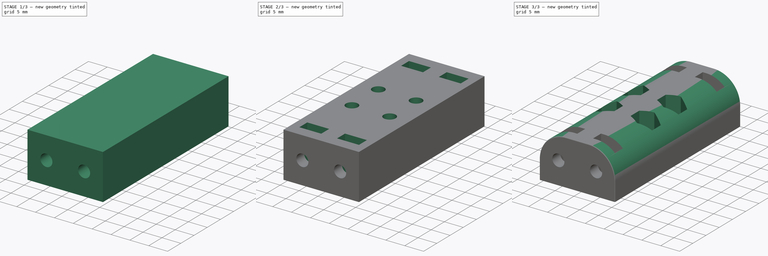
[diagram: build sequence overview — one tinted view per stage of 3, left to right]
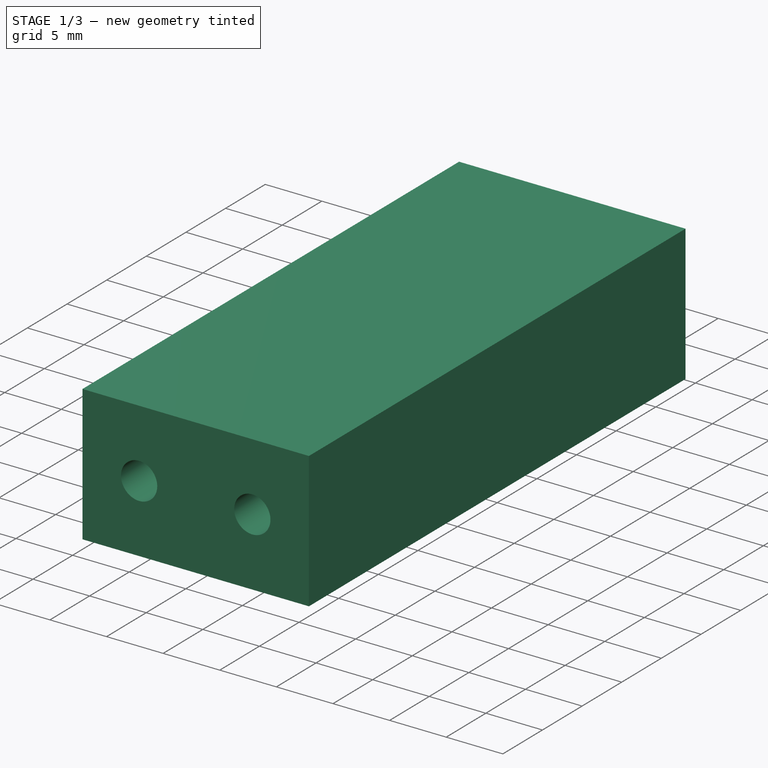
[diagram: stage 1 of 3 — iso view after this stage's code; geometry added in this stage tinted green]
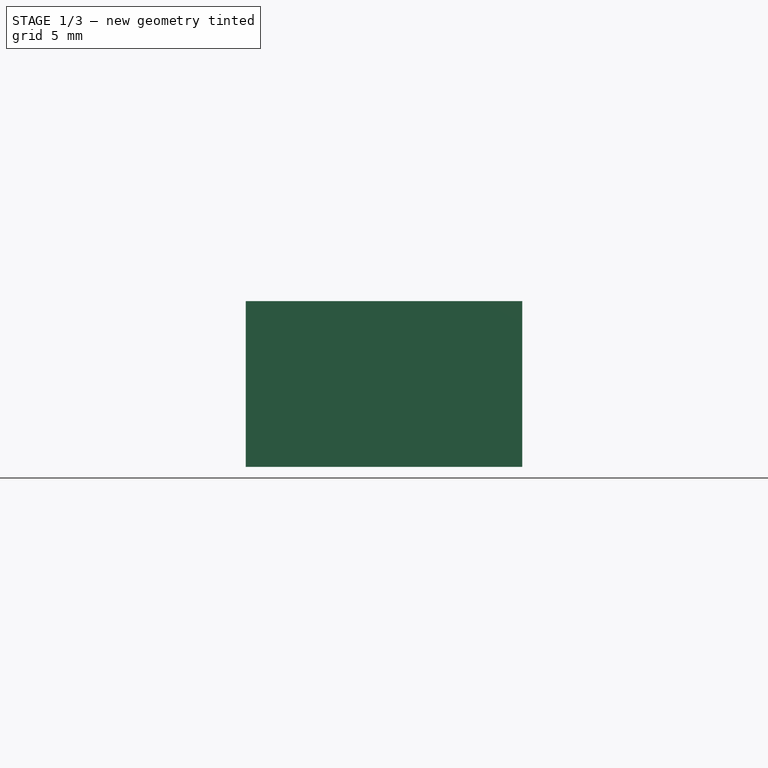
[diagram: stage 1 of 3 — front view after this stage's code; geometry added in this stage tinted green]
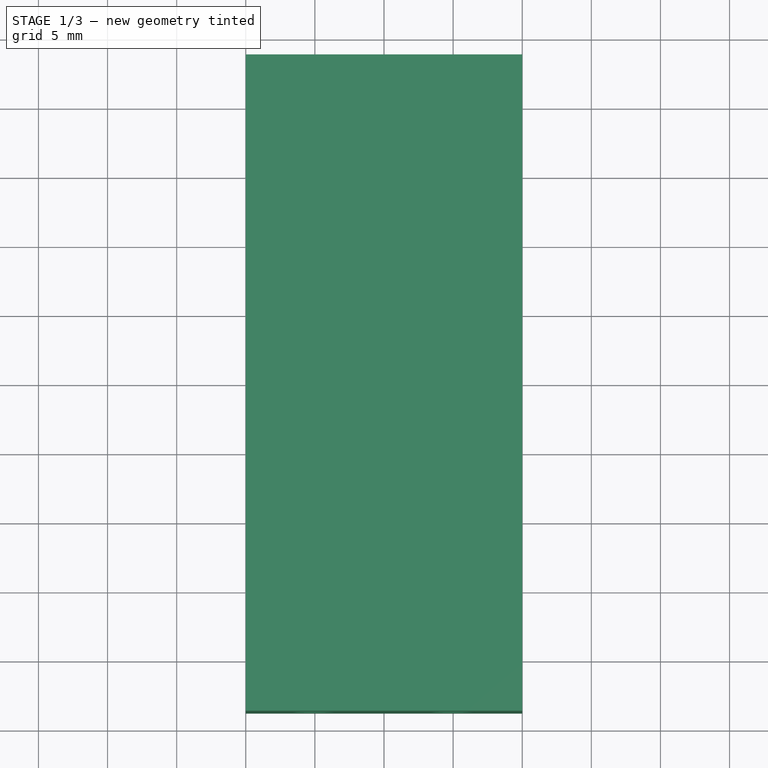
[diagram: stage 1 of 3 — top view after this stage's code; geometry added in this stage tinted green]
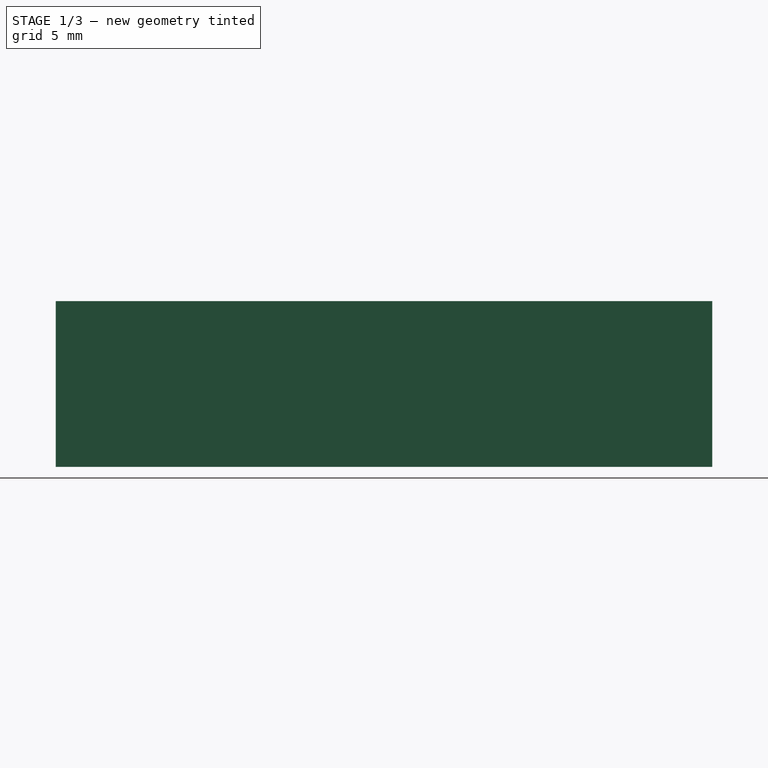
[diagram: stage 1 of 3 — right view after this stage's code; geometry added in this stage tinted green]
FCSTD DOCUMENT  (FreeCAD 0.18R4 (GitTag))
Label: Bottom_Shoulder
License: CreativeCommons Attribution-NonCommercial
LicenseURL: http://creativecommons.org/licenses/by-nc/4.0/
objects: Sketcher::SketchObject×7, PartDesign::Pocket×6, PartDesign::Pad×1, PartDesign::Fillet×1, PartDesign::Body×1
note: 23 computed .brp shape members not serialized (recipe doc carries the construction recipe); baked Part::Feature solids carry a one-line shape summary decoded from their .brp

FEATURE [Sketcher::SketchObject] Sketch
  MapMode = 5
  Support = -> [XY_Plane]
  sketch-geometry (4):
    g0: LineSegment StartX=-10 StartY=23.75 StartZ=0 EndX=10 EndY=23.75 EndZ=0
    g1: LineSegment StartX=10 StartY=23.75 StartZ=0 EndX=10 EndY=-23.75 EndZ=0
    g2: LineSegment StartX=10 StartY=-23.75 StartZ=0 EndX=-10 EndY=-23.75 EndZ=0
    g3: LineSegment StartX=-10 StartY=-23.75 StartZ=0 EndX=-10 EndY=23.75 EndZ=0
  constraints (10):
    c: Coincident(g0,g1)
    c: Coincident(g1,g2)
    c: Coincident(g2,g3)
    c: Coincident(g3,g0)
    c: Horizontal(g2)
    c: Vertical(g1)
    c: Symmetric(g0,g0,g-2)
    c: Symmetric(g0,g2,g-1)
    c: DistanceX(g0,g0) = 20
    c: DistanceY(g3,g3) = 47.5
FEATURE [PartDesign::Pad] Pad  label="Baseplate"
  Length = 12
  Length2 = 100
  Profile = -> Sketch
  Type = 0
FEATURE [Sketcher::SketchObject] Sketch001
  MapMode = 5
  Placement = pos=(0,-23.75,0) rot=(1,0,0;1.5708rad)
  Support = -> [Pad]
  sketch-geometry (2):
    g0: Circle CenterX=-5 CenterY=6 CenterZ=0 NormalX=0 NormalY=0 NormalZ=1 AngleXU=0 Radius=1.6
    g1: Circle CenterX=5 CenterY=6 CenterZ=0 NormalX=0 NormalY=0 NormalZ=1 AngleXU=0 Radius=1.6
  constraints (5):
    c: Symmetric(g0,g1,g-2)
    c: Equal(g0,g1)
    c: Radius(g1) = 1.6
    c: DistanceY(g-1,g0) = 6
    c: DistanceX(g0,g1) = 10
FEATURE [PartDesign::Pocket] Pocket  label="Screwholes Front"
  BaseFeature = -> Pad
  Length = 8
  Length2 = 100
  Profile = -> Sketch001
  Type = 0
FEATURE [Sketcher::SketchObject] Sketch002
  MapMode = 5
  Placement = pos=(0,23.75,0) rot=(0,0.707107,0.707107;3.14159rad)
  Support = -> [Pocket]
  sketch-geometry (2):
    g0: Circle CenterX=-5 CenterY=6 CenterZ=0 NormalX=0 NormalY=0 NormalZ=1 AngleXU=0 Radius=1.6
    g1: Circle CenterX=5 CenterY=6 CenterZ=0 NormalX=0 NormalY=0 NormalZ=1 AngleXU=0 Radius=1.6
  constraints (5):
    c: Symmetric(g0,g1,g-2)
    c: Equal(g0,g1)
    c: Radius(g1) = 1.6
    c: DistanceY(g-1,g0) = 6
    c: DistanceX(g0,g1) = 10
FEATURE [PartDesign::Pocket] Pocket001  label="Screwholes Rear"
  BaseFeature = -> Pocket
  Length = 8
  Length2 = 100
  Profile = -> Sketch002
  Type = 0
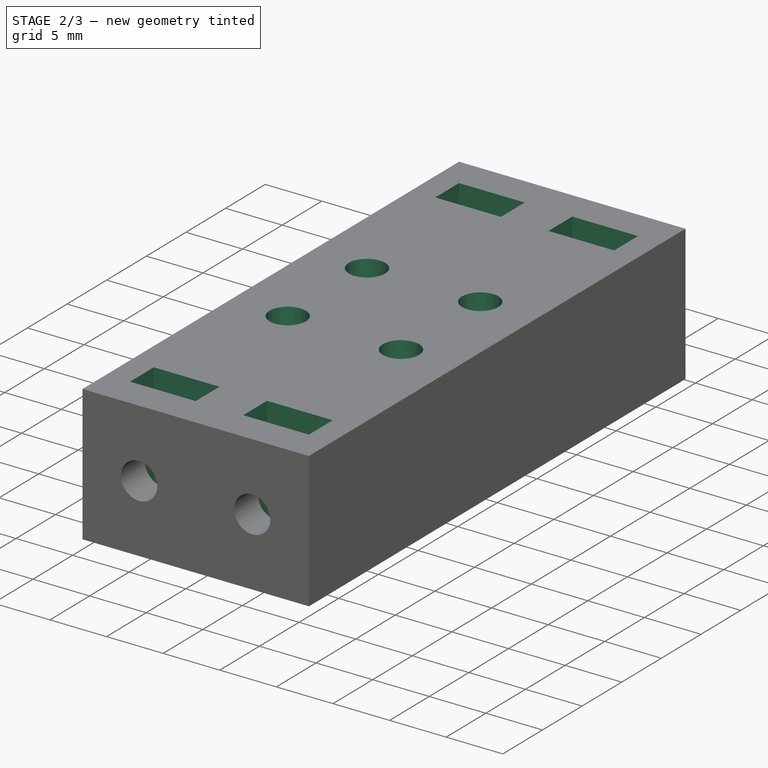
[diagram: stage 2 of 3 — iso view after this stage's code; geometry added in this stage tinted green]
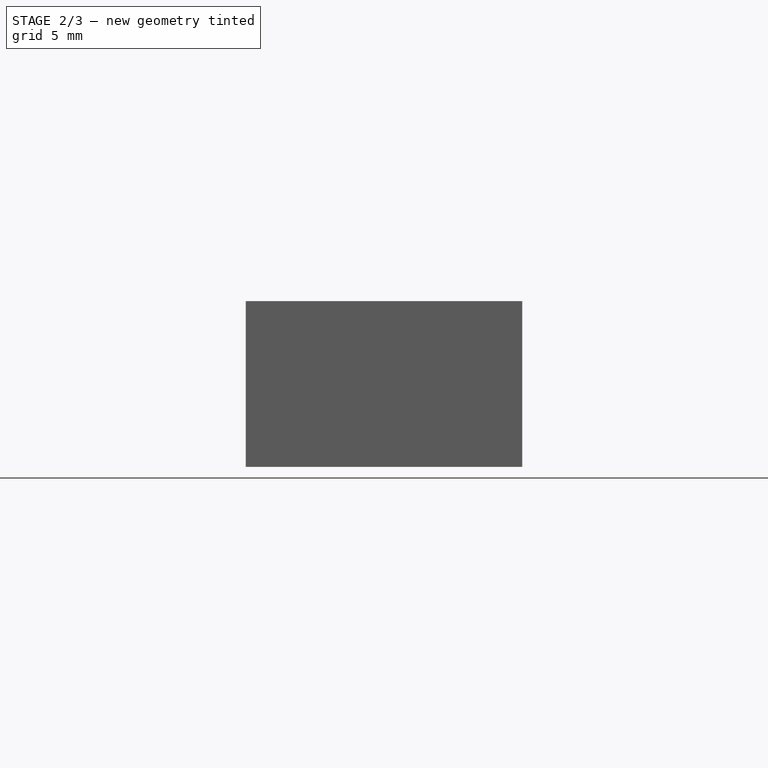
[diagram: stage 2 of 3 — front view after this stage's code; geometry added in this stage tinted green]
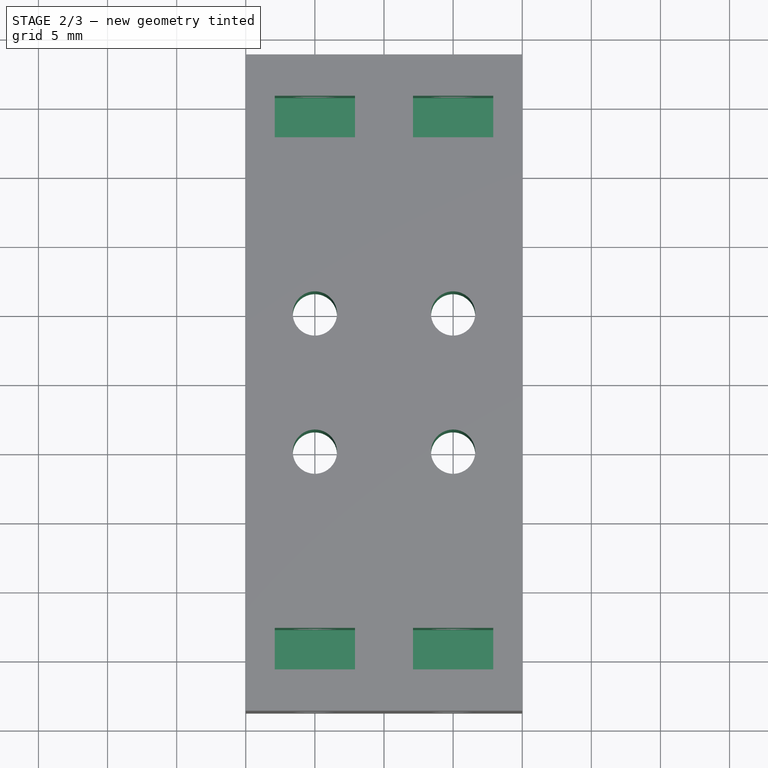
[diagram: stage 2 of 3 — top view after this stage's code; geometry added in this stage tinted green]
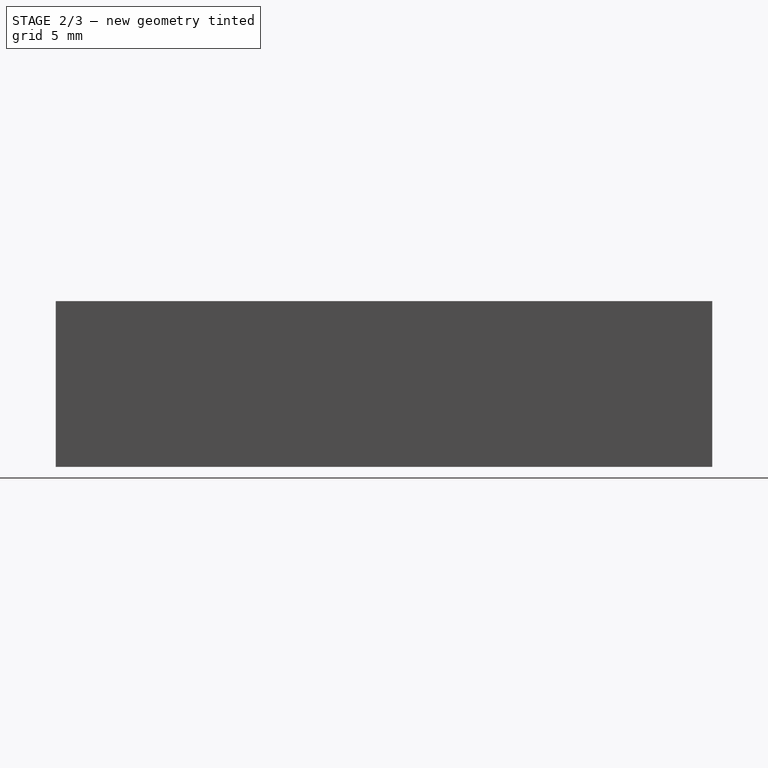
[diagram: stage 2 of 3 — right view after this stage's code; geometry added in this stage tinted green]
FEATURE [Sketcher::SketchObject] Sketch003
  MapMode = 5
  Placement = pos=(0,0,12) rot=(0,0,1;0rad)
  Support = -> [Pocket001]
  sketch-geometry (16):
    g0: LineSegment StartX=-7.9 StartY=20.75 StartZ=0 EndX=-2.1 EndY=20.75 EndZ=0
    g1: LineSegment StartX=-2.1 StartY=20.75 StartZ=0 EndX=-2.1 EndY=17.75 EndZ=0
    g2: LineSegment StartX=-2.1 StartY=17.75 StartZ=0 EndX=-7.9 EndY=17.75 EndZ=0
    g3: LineSegment StartX=-7.9 StartY=17.75 StartZ=0 EndX=-7.9 EndY=20.75 EndZ=0
    g4: LineSegment StartX=2.1 StartY=20.75 StartZ=0 EndX=7.9 EndY=20.75 EndZ=0
    g5: LineSegment StartX=7.9 StartY=20.75 StartZ=0 EndX=7.9 EndY=17.75 EndZ=0
    g6: LineSegment StartX=7.9 StartY=17.75 StartZ=0 EndX=2.1 EndY=17.75 EndZ=0
    g7: LineSegment StartX=2.1 StartY=17.75 StartZ=0 EndX=2.1 EndY=20.75 EndZ=0
    g8: LineSegment StartX=-7.9 StartY=-17.75 StartZ=0 EndX=-2.1 EndY=-17.75 EndZ=0
    g9: LineSegment StartX=-2.1 StartY=-17.75 StartZ=0 EndX=-2.1 EndY=-20.75 EndZ=0
    g10: LineSegment StartX=-2.1 StartY=-20.75 StartZ=0 EndX=-7.9 EndY=-20.75 EndZ=0
    g11: LineSegment StartX=-7.9 StartY=-20.75 StartZ=0 EndX=-7.9 EndY=-17.75 EndZ=0
    g12: LineSegment StartX=2.1 StartY=-17.75 StartZ=0 EndX=7.9 EndY=-17.75 EndZ=0
    g13: LineSegment StartX=7.9 StartY=-17.75 StartZ=0 EndX=7.9 EndY=-20.75 EndZ=0
    g14: LineSegment StartX=7.9 StartY=-20.75 StartZ=0 EndX=2.1 EndY=-20.75 EndZ=0
    g15: LineSegment StartX=2.1 StartY=-20.75 StartZ=0 EndX=2.1 EndY=-17.75 EndZ=0
  constraints (45):
    c: Coincident(g0,g1)
    c: Coincident(g1,g2)
    c: Coincident(g2,g3)
    c: Coincident(g3,g0)
    c: Horizontal(g0)
    c: Horizontal(g2)
    c: Vertical(g1)
    c: Vertical(g3)
    c: Coincident(g4,g5)
    c: Coincident(g5,g6)
    c: Coincident(g6,g7)
    c: Coincident(g7,g4)
    c: Horizontal(g4)
    c: Horizontal(g6)
    c: Vertical(g5)
    c: Vertical(g7)
    c: Coincident(g8,g9)
    c: Coincident(g9,g10)
    c: Coincident(g10,g11)
    c: Coincident(g11,g8)
    c: Horizontal(g8)
    c: Horizontal(g10)
    c: Vertical(g9)
    c: Vertical(g11)
    c: Coincident(g12,g13)
    c: Coincident(g13,g14)
    c: Coincident(g14,g15)
    c: Coincident(g15,g12)
    c: Horizontal(g12)
    c: Horizontal(g14)
    c: Vertical(g13)
    c: Vertical(g15)
    c: Equal(g11,g13)
    c: Equal(g13,g5)
    c: Equal(g5,g3)
    c: Equal(g0,g4)
    c: Equal(g4,g10)
    c: Equal(g10,g14)
    c: DistanceX(g0,g0) = 5.8
    c: Symmetric(g0,g4,g-2)
    c: Symmetric(g9,g14,g-2)
    c: Symmetric(g12,g5,g-1)
    c: DistanceY(g10,g-1) = 20.75
    c: DistanceY(g11,g11) = 3
    c: DistanceX(g0,g4) = 4.2
FEATURE [PartDesign::Pocket] Pocket002  label="Nutholes Front and Rear"
  BaseFeature = -> Pocket001
  Length = 9.5
  Length2 = 100
  Profile = -> Sketch003
  Type = 0
FEATURE [Sketcher::SketchObject] Sketch004
  MapMode = 5
  Placement = pos=(0,0,12) rot=(0,0,1;0rad)
  Support = -> [Pocket002]
  sketch-geometry (4):
    g0: Circle CenterX=-5 CenterY=5 CenterZ=0 NormalX=0 NormalY=0 NormalZ=1 AngleXU=0 Radius=1.6
    g1: Circle CenterX=5 CenterY=5 CenterZ=0 NormalX=0 NormalY=0 NormalZ=1 AngleXU=0 Radius=1.6
    g2: Circle CenterX=-5 CenterY=-5 CenterZ=0 NormalX=0 NormalY=0 NormalZ=1 AngleXU=0 Radius=1.6
    g3: Circle CenterX=5 CenterY=-5 CenterZ=0 NormalX=0 NormalY=0 NormalZ=1 AngleXU=0 Radius=1.6
  constraints (9):
    c: Equal(g0,g1)
    c: Equal(g1,g2)
    c: Equal(g2,g3)
    c: Symmetric(g3,g1,g-1)
    c: Symmetric(g0,g1,g-2)
    c: Symmetric(g2,g3,g-2)
    c: Radius(g1) = 1.6
    c: DistanceX(g0,g1) = 10
    c: DistanceY(g2,g0) = 10
FEATURE [PartDesign::Pocket] Pocket003  label="Screwholes Covers"
  BaseFeature = -> Pocket002
  Length = 12
  Length2 = 100
  Profile = -> Sketch004
  Type = 0
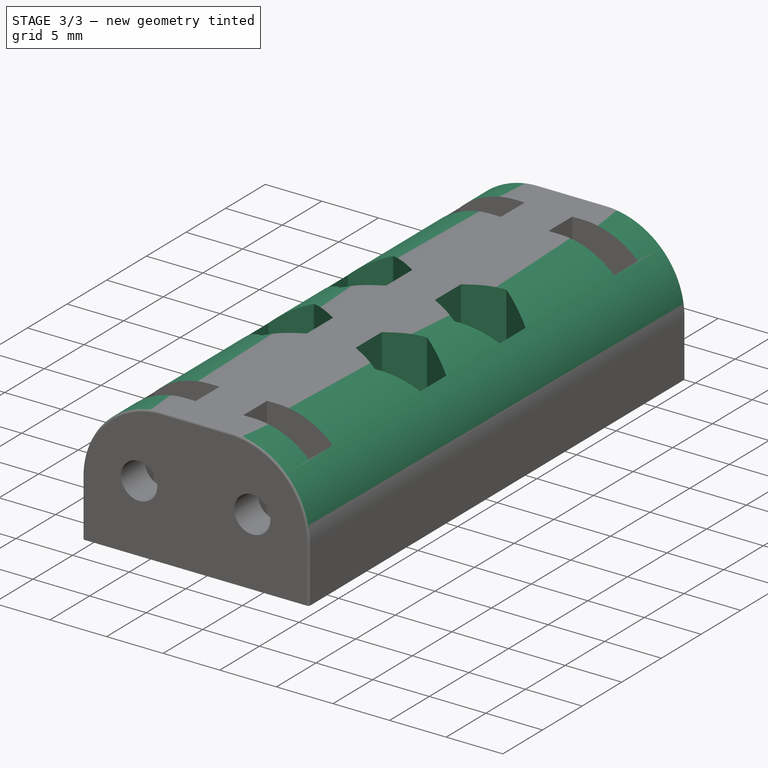
[diagram: stage 3 of 3 — iso view after this stage's code; geometry added in this stage tinted green]
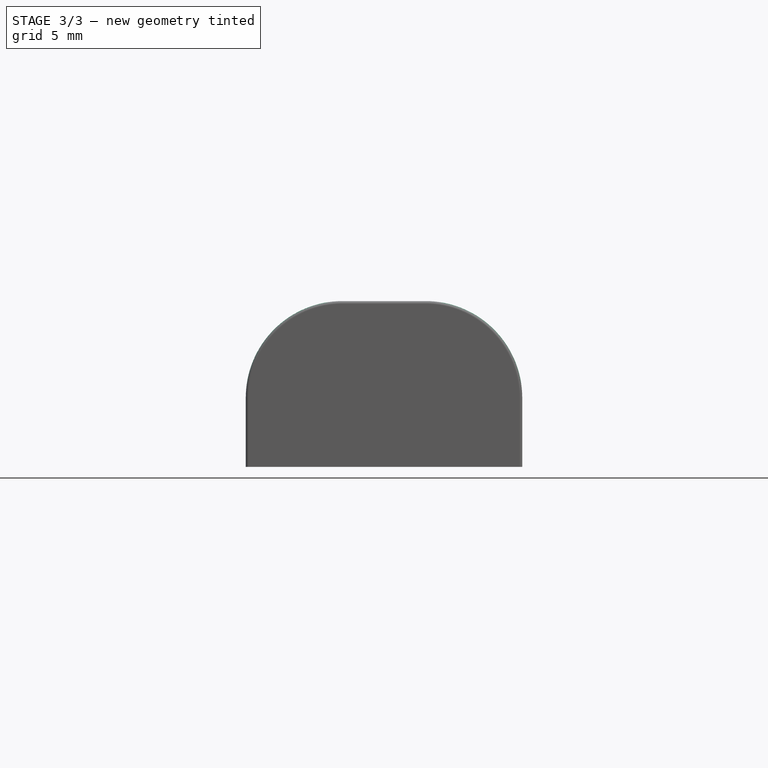
[diagram: stage 3 of 3 — front view after this stage's code; geometry added in this stage tinted green]
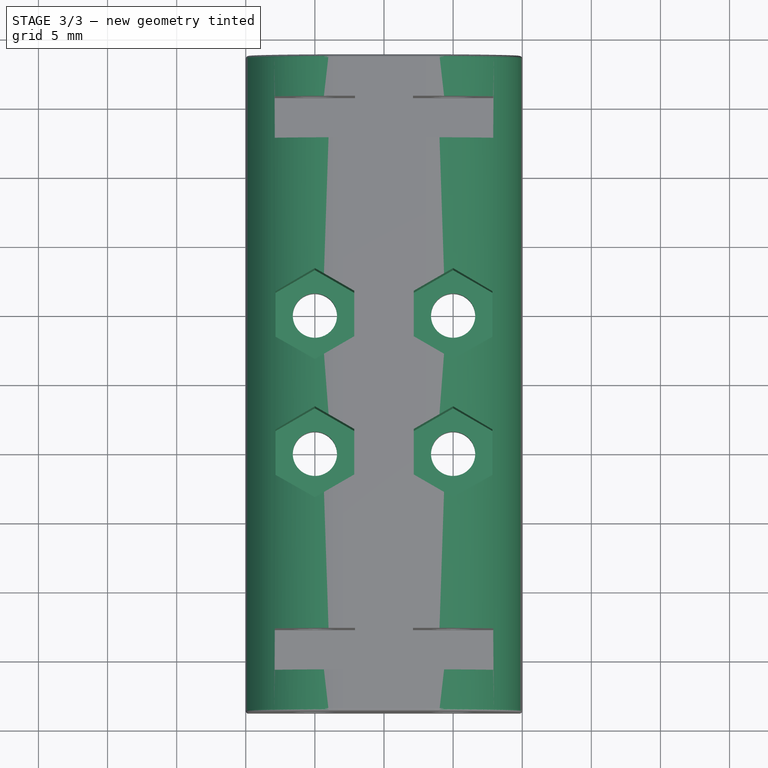
[diagram: stage 3 of 3 — top view after this stage's code; geometry added in this stage tinted green]
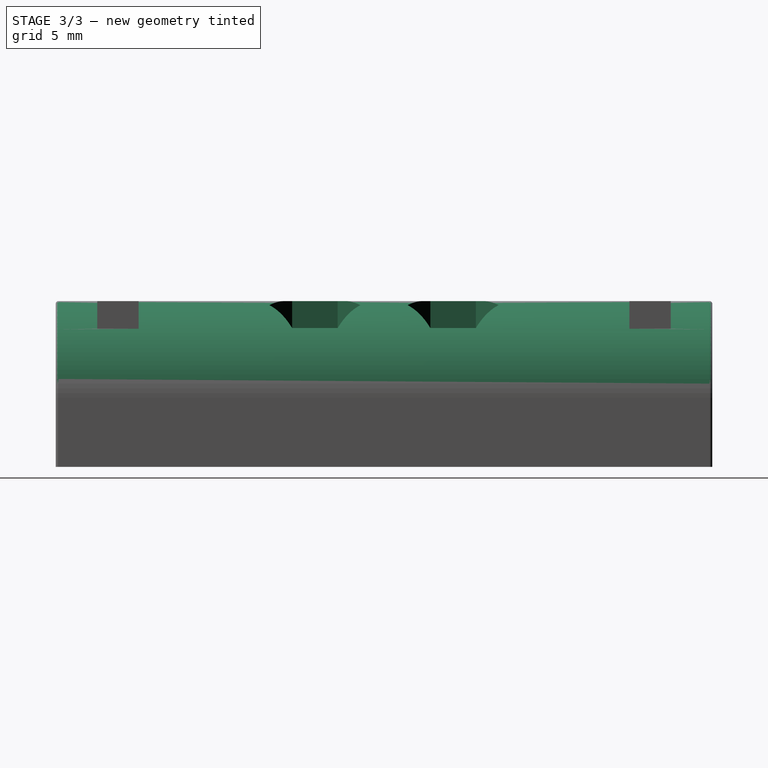
[diagram: stage 3 of 3 — right view after this stage's code; geometry added in this stage tinted green]
FEATURE [Sketcher::SketchObject] Sketch005
  ExternalGeometry = -> [Pocket003]
  MapMode = 5
  Placement = pos=(0,0,12) rot=(0,0,1;0rad)
  Support = -> [Pocket003]
  sketch-geometry (32):
    g0: LineSegment StartX=-5 StartY=8.2909 StartZ=0 EndX=-7.85 EndY=6.64545 EndZ=0
    g1: LineSegment StartX=-7.85 StartY=6.64545 StartZ=0 EndX=-7.85 EndY=3.35455 EndZ=0
    g2: LineSegment StartX=-7.85 StartY=3.35455 StartZ=0 EndX=-5 EndY=1.7091 EndZ=0
    g3: LineSegment StartX=-5 StartY=1.7091 StartZ=0 EndX=-2.15 EndY=3.35455 EndZ=0
    g4: LineSegment StartX=-2.15 StartY=3.35455 StartZ=0 EndX=-2.15 EndY=6.64545 EndZ=0
    g5: LineSegment StartX=-2.15 StartY=6.64545 StartZ=0 EndX=-5 EndY=8.2909 EndZ=0
    g6: Circle [constr] CenterX=-5 CenterY=5 CenterZ=0 NormalX=0 NormalY=0 NormalZ=1 AngleXU=0 Radius=3.2909
    g7: LineSegment StartX=7.85 StartY=6.64545 StartZ=0 EndX=5 EndY=8.2909 EndZ=0
    g8: LineSegment StartX=5 StartY=8.2909 StartZ=0 EndX=2.15 EndY=6.64545 EndZ=0
    g9: LineSegment StartX=2.15 StartY=6.64545 StartZ=0 EndX=2.15 EndY=3.35455 EndZ=0
    g10: LineSegment StartX=2.15 StartY=3.35455 StartZ=0 EndX=5 EndY=1.7091 EndZ=0
    g11: LineSegment StartX=5 StartY=1.7091 StartZ=0 EndX=7.85 EndY=3.35455 EndZ=0
    g12: LineSegment StartX=7.85 StartY=3.35455 StartZ=0 EndX=7.85 EndY=6.64545 EndZ=0
    g13: Circle [constr] CenterX=5 CenterY=5 CenterZ=0 NormalX=0 NormalY=0 NormalZ=1 AngleXU=0 Radius=3.2909
    g14: LineSegment StartX=-5 StartY=-1.7091 StartZ=0 EndX=-7.85 EndY=-3.35455 EndZ=0
    g15: LineSegment StartX=-7.85 StartY=-3.35455 StartZ=0 EndX=-7.85 EndY=-6.64545 EndZ=0
    g16: LineSegment StartX=-7.85 StartY=-6.64545 StartZ=0 EndX=-5 EndY=-8.2909 EndZ=0
    g17: LineSegment StartX=-5 StartY=-8.2909 StartZ=0 EndX=-2.15 EndY=-6.64545 EndZ=0
    g18: LineSegment StartX=-2.15 StartY=-6.64545 StartZ=0 EndX=-2.15 EndY=-3.35455 EndZ=0
    g19: LineSegment StartX=-2.15 StartY=-3.35455 StartZ=0 EndX=-5 EndY=-1.7091 EndZ=0
    g20: Circle [constr] CenterX=-5 CenterY=-5 CenterZ=0 NormalX=0 NormalY=0 NormalZ=1 AngleXU=0 Radius=3.2909
    g21: LineSegment StartX=7.85 StartY=-3.35455 StartZ=0 EndX=5 EndY=-1.7091 EndZ=0
    g22: LineSegment StartX=5 StartY=-1.7091 StartZ=0 EndX=2.15 EndY=-3.35455 EndZ=0
    g23: LineSegment StartX=2.15 StartY=-3.35455 StartZ=0 EndX=2.15 EndY=-6.64545 EndZ=0
    g24: LineSegment StartX=2.15 StartY=-6.64545 StartZ=0 EndX=5 EndY=-8.2909 EndZ=0
    g25: LineSegment StartX=5 StartY=-8.2909 StartZ=0 EndX=7.85 EndY=-6.64545 EndZ=0
    g26: LineSegment StartX=7.85 StartY=-6.64545 StartZ=0 EndX=7.85 EndY=-3.35455 EndZ=0
    g27: Circle [constr] CenterX=5 CenterY=-5 CenterZ=0 NormalX=0 NormalY=0 NormalZ=1 AngleXU=0 Radius=3.2909
    g28: LineSegment [constr] StartX=-5 StartY=5 StartZ=0 EndX=5 EndY=5 EndZ=0
    g29: LineSegment [constr] StartX=5 StartY=5 StartZ=0 EndX=5 EndY=-5 EndZ=0
    g30: LineSegment [constr] StartX=5 StartY=-5 StartZ=0 EndX=-5 EndY=-5 EndZ=0
    g31: LineSegment [constr] StartX=-5 StartY=-5 StartZ=0 EndX=-5 EndY=5 EndZ=0
  constraints (74):
    c: Coincident(g0,g1)
    c: Coincident(g1,g2)
    c: Coincident(g2,g3)
    c: Coincident(g3,g4)
    c: Coincident(g4,g5)
    c: Coincident(g5,g0)
    c: Equal(g0, g1-g5) x5
    c: PointOnObject(g0,g6)
    c: PointOnObject(g1,g6)
    c: PointOnObject(g2,g6)
    c: PointOnObject(g3,g6)
    c: PointOnObject(g4,g6)
    c: PointOnObject(g5,g6)
    c: Coincident(g7,g8)
    c: Coincident(g8,g9)
    c: Coincident(g9,g10)
    c: Coincident(g10,g11)
    c: Coincident(g11,g12)
    c: Coincident(g12,g7)
    c: Equal(g7, g8-g12) x5
    c: PointOnObject(g7,g13)
    c: PointOnObject(g8,g13)
    c: PointOnObject(g9,g13)
    c: PointOnObject(g10,g13)
    c: PointOnObject(g11,g13)
    c: PointOnObject(g12,g13)
    c: Coincident(g14,g15)
    c: Coincident(g15,g16)
    c: Coincident(g16,g17)
    c: Coincident(g17,g18)
    c: Coincident(g18,g19)
    c: Coincident(g19,g14)
    c: Equal(g14, g15-g19) x5
    c: PointOnObject(g14,g20)
    c: PointOnObject(g15,g20)
    c: PointOnObject(g16,g20)
    c: PointOnObject(g17,g20)
    c: PointOnObject(g18,g20)
    c: PointOnObject(g19,g20)
    c: Coincident(g21,g22)
    c: Coincident(g22,g23)
    c: Coincident(g23,g24)
    c: Coincident(g24,g25)
    c: Coincident(g25,g26)
    c: Coincident(g26,g21)
    c: Equal(g21, g22-g26) x5
    c: PointOnObject(g21,g27)
    c: PointOnObject(g22,g27)
    c: PointOnObject(g23,g27)
    c: PointOnObject(g24,g27)
    c: PointOnObject(g25,g27)
    c: PointOnObject(g26,g27)
    c: Equal(g20,g6)
    c: Equal(g6,g13)
    c: Equal(g13,g27)
    c: Vertical(g15)
    c: Vertical(g1)
    c: Vertical(g12)
    c: Vertical(g26)
    c: Distance(g23,g25) = 5.7
    c: Coincident(g28,g29)
    c: Coincident(g29,g30)
    c: Coincident(g30,g31)
    c: Coincident(g31,g28)
    c: Horizontal(g30)
    c: Vertical(g31)
    c: Coincident(g28,g6)
    c: Coincident(g29,g27)
    c: Coincident(g13,g28)
    c: Coincident(g20,g30)
    c: Symmetric(g6,g13,g-2)
    c: Symmetric(g13,g27,g-1)
    c: Equal(g28,g29)
    c: DistanceX(g28,g28) = 10
FEATURE [PartDesign::Pocket] Pocket004  label="Nutholes Covers"
  BaseFeature = -> Pocket003
  Length = 9
  Length2 = 100
  Profile = -> Sketch005
  Type = 0
FEATURE [Sketcher::SketchObject] Sketch008
  MapMode = 5
  Placement = pos=(0,-23.75,0) rot=(1,0,0;1.5708rad)
  Support = -> [Pocket004]
  sketch-geometry (6):
    g0: ArcOfCircle CenterX=-3 CenterY=5 CenterZ=0 NormalX=0 NormalY=0 NormalZ=1 AngleXU=0 Radius=7 StartAngle=1.5708 EndAngle=3.14159
    g1: ArcOfCircle CenterX=3 CenterY=5 CenterZ=0 NormalX=0 NormalY=0 NormalZ=1 AngleXU=0 Radius=7 StartAngle=0 EndAngle=1.5708
    g2: LineSegment StartX=-10 StartY=5 StartZ=0 EndX=-10 EndY=13 EndZ=0
    g3: LineSegment StartX=10 StartY=5 StartZ=0 EndX=10 EndY=13 EndZ=0
    g4: LineSegment StartX=10 StartY=13 StartZ=0 EndX=-10 EndY=13 EndZ=0
    g5: LineSegment StartX=-3 StartY=12 StartZ=0 EndX=3 EndY=12 EndZ=0
  constraints (19):
    c: Equal(g0,g1)
    c: Horizontal(g0,g0)
    c: Horizontal(g1,g1)
    c: Vertical(g0,g0)
    c: Vertical(g1,g1)
    c: Radius(g1) = 7
    c: Coincident(g2,g0)
    c: Vertical(g2)
    c: Coincident(g3,g1)
    c: Vertical(g3)
    c: Coincident(g4,g3)
    c: Coincident(g4,g2)
    c: Horizontal(g4)
    c: Coincident(g5,g0)
    c: Coincident(g5,g1)
    c: Symmetric(g0,g1,g-2)
    c: DistanceY(g-1,g1) = 12
    c: DistanceX(g0,g1) = 20
    c: DistanceY(g1,g3) = 1
FEATURE [PartDesign::Pocket] Pocket005  label="Rounding Top"
  BaseFeature = -> Pocket004
  Length = 50
  Length2 = 100
  Profile = -> Sketch008
  Type = 0
FEATURE [PartDesign::Fillet] Fillet  label="Smooth Outer Edges"
  Base = -> Pocket005 [Edge16,Edge88,Edge6,Edge2]
  BaseFeature = -> Pocket005
  Radius = 0.2
FEATURE [PartDesign::Body] Body  label="Bottom_Shoulder"
  Group = -> [Sketch,Pad,Sketch001,Pocket,Sketch002,Pocket001,Sketch003,Pocket002,Sketch004,Pocket003,Sketch005,Pocket004,Sketch008,Pocket005,Fillet]
  Origin = -> Origin
  Tip = -> Fillet
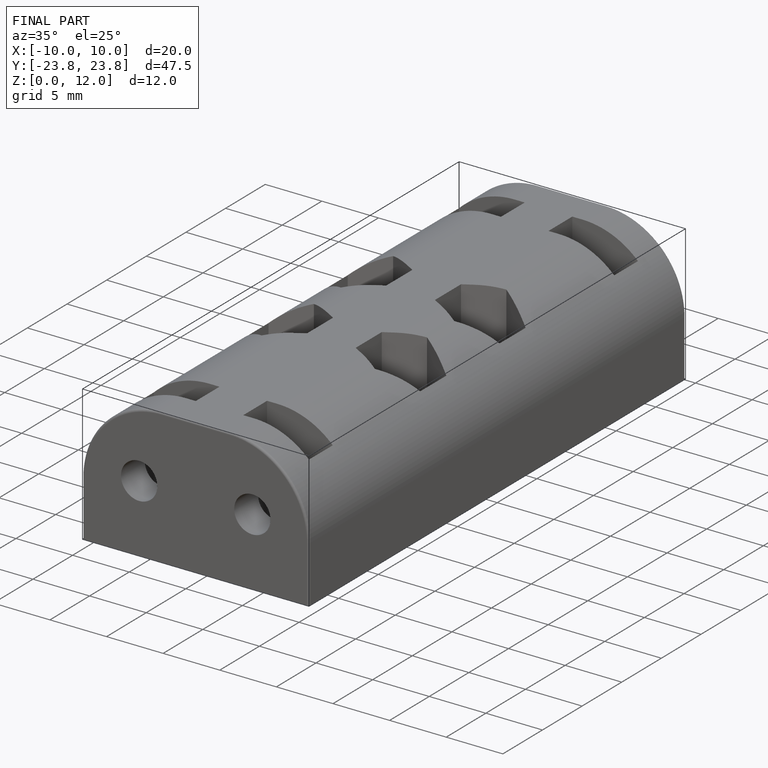
[diagram: finished part — iso view with bounding-box wireframe]
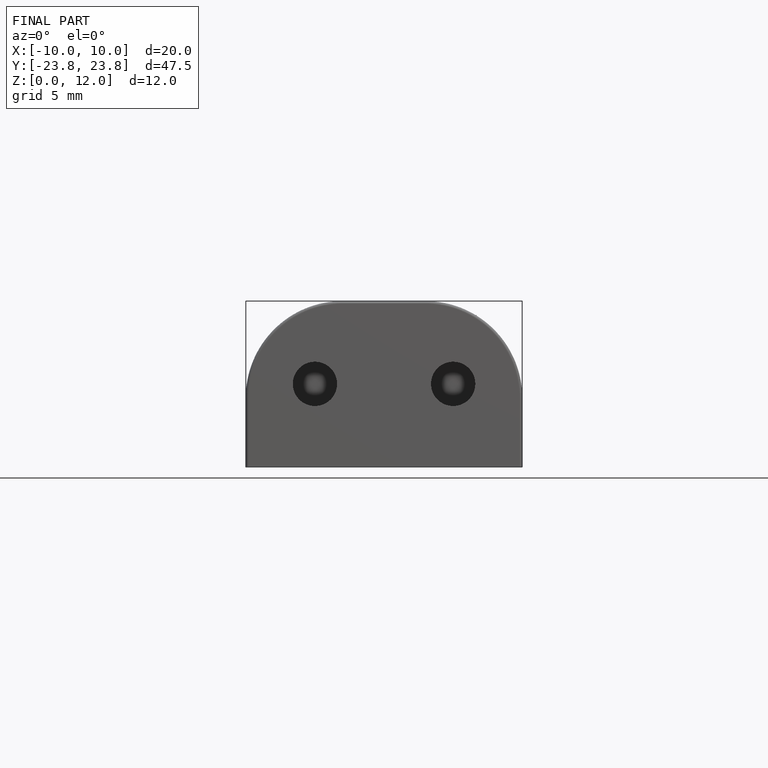
[diagram: finished part — front view with bounding-box wireframe]
